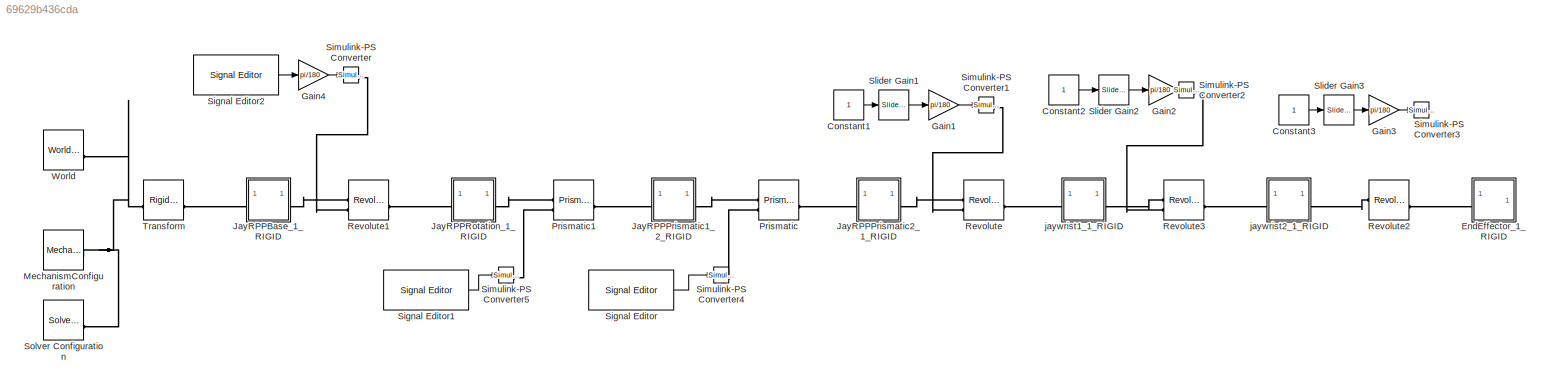
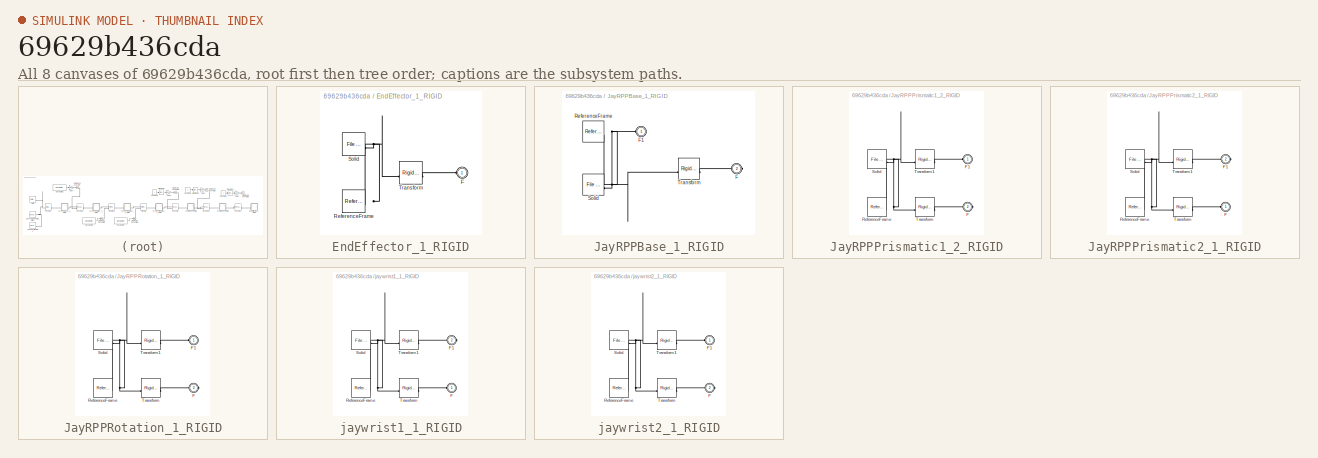
[diagram: thumbnail index - all 8 canvases of the model, root first then tree order]
MODEL slx_69629b436cda
KIND model
CONFIG AbsTol = auto
CONFIG EnableMultiTasking = off
CONFIG FixedStep = auto
CONFIG MaxStep = auto
CONFIG MinStep = auto
CONFIG RelTol = 1e-3
CONFIG SampleTimeConstraint = Unconstrained
CONFIG SolverName = VariableStepAuto
CONFIG StartTime = 0.0
CONFIG StopTime = 10.0
WORKSPACE source: external: MATLAB File  (data not in archive)
BLOCK [Constant] Constant1
BLOCK [Constant] Constant2
BLOCK [Constant] Constant3
BLOCK [SubSystem] EndEffector_1_RIGID
BLOCK [PMIOPort] EndEffector_1_RIGID/F
  Side = Left
BLOCK [Reference] EndEffector_1_RIGID/ReferenceFrame  REF=sm_lib/Frames and
Transforms/Reference
Frame
  SourceBlock = sm_lib/Frames and\nTransforms/Reference\nFrame
  SourceType = Reference\nFrame
BLOCK [Reference] EndEffector_1_RIGID/Solid  REF=sm_lib/Body Elements/File Solid
  SourceBlock = sm_lib/Body Elements/File Solid
  SourceType = File Solid
BLOCK [Reference] EndEffector_1_RIGID/Transform  REF=sm_lib/Frames and
Transforms/Rigid
Transform
  SourceBlock = sm_lib/Frames and\nTransforms/Rigid\nTransform
  SourceType = Rigid\nTransform
BLOCK [Gain] Gain1
  Gain = pi/180
BLOCK [Gain] Gain2
  Gain = pi/180
BLOCK [Gain] Gain3
  Gain = pi/180
BLOCK [Gain] Gain4
  Gain = pi/180
BLOCK [SubSystem] JayRPPBase_1_RIGID
BLOCK [PMIOPort] JayRPPBase_1_RIGID/F
  Port = 2
  Side = Right
BLOCK [PMIOPort] JayRPPBase_1_RIGID/F1
  Side = Left
BLOCK [Reference] JayRPPBase_1_RIGID/ReferenceFrame  REF=sm_lib/Frames and
Transforms/Reference
Frame
  SourceBlock = sm_lib/Frames and\nTransforms/Reference\nFrame
  SourceType = Reference\nFrame
BLOCK [Reference] JayRPPBase_1_RIGID/Solid  REF=sm_lib/Body Elements/File Solid
  SourceBlock = sm_lib/Body Elements/File Solid
  SourceType = File Solid
BLOCK [Reference] JayRPPBase_1_RIGID/Transform  REF=sm_lib/Frames and
Transforms/Rigid
Transform
  SourceBlock = sm_lib/Frames and\nTransforms/Rigid\nTransform
  SourceType = Rigid\nTransform
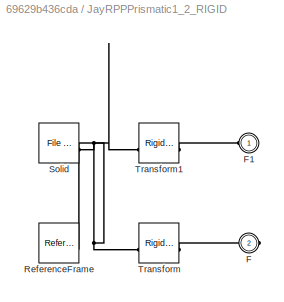
BLOCK [SubSystem] JayRPPPrismatic1_2_RIGID
BLOCK [PMIOPort] JayRPPPrismatic1_2_RIGID/F
  Port = 2
  Side = Right
BLOCK [PMIOPort] JayRPPPrismatic1_2_RIGID/F1
  Side = Left
BLOCK [Reference] JayRPPPrismatic1_2_RIGID/ReferenceFrame  REF=sm_lib/Frames and
Transforms/Reference
Frame
  SourceBlock = sm_lib/Frames and\nTransforms/Reference\nFrame
  SourceType = Reference\nFrame
BLOCK [Reference] JayRPPPrismatic1_2_RIGID/Solid  REF=sm_lib/Body Elements/File Solid
  SourceBlock = sm_lib/Body Elements/File Solid
  SourceType = File Solid
BLOCK [Reference] JayRPPPrismatic1_2_RIGID/Transform  REF=sm_lib/Frames and
Transforms/Rigid
Transform
  SourceBlock = sm_lib/Frames and\nTransforms/Rigid\nTransform
  SourceType = Rigid\nTransform
BLOCK [Reference] JayRPPPrismatic1_2_RIGID/Transform1  REF=sm_lib/Frames and
Transforms/Rigid
Transform
  SourceBlock = sm_lib/Frames and\nTransforms/Rigid\nTransform
  SourceType = Rigid\nTransform
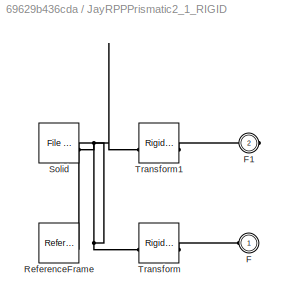
BLOCK [SubSystem] JayRPPPrismatic2_1_RIGID
BLOCK [PMIOPort] JayRPPPrismatic2_1_RIGID/F
  Side = Left
BLOCK [PMIOPort] JayRPPPrismatic2_1_RIGID/F1
  Port = 2
  Side = Right
BLOCK [Reference] JayRPPPrismatic2_1_RIGID/ReferenceFrame  REF=sm_lib/Frames and
Transforms/Reference
Frame
  SourceBlock = sm_lib/Frames and\nTransforms/Reference\nFrame
  SourceType = Reference\nFrame
BLOCK [Reference] JayRPPPrismatic2_1_RIGID/Solid  REF=sm_lib/Body Elements/File Solid
  SourceBlock = sm_lib/Body Elements/File Solid
  SourceType = File Solid
BLOCK [Reference] JayRPPPrismatic2_1_RIGID/Transform  REF=sm_lib/Frames and
Transforms/Rigid
Transform
  SourceBlock = sm_lib/Frames and\nTransforms/Rigid\nTransform
  SourceType = Rigid\nTransform
BLOCK [Reference] JayRPPPrismatic2_1_RIGID/Transform1  REF=sm_lib/Frames and
Transforms/Rigid
Transform
  SourceBlock = sm_lib/Frames and\nTransforms/Rigid\nTransform
  SourceType = Rigid\nTransform
BLOCK [SubSystem] JayRPPRotation_1_RIGID
BLOCK [PMIOPort] JayRPPRotation_1_RIGID/F
  Port = 2
  Side = Right
BLOCK [PMIOPort] JayRPPRotation_1_RIGID/F1
  Side = Left
BLOCK [Reference] JayRPPRotation_1_RIGID/ReferenceFrame  REF=sm_lib/Frames and
Transforms/Reference
Frame
  SourceBlock = sm_lib/Frames and\nTransforms/Reference\nFrame
  SourceType = Reference\nFrame
BLOCK [Reference] JayRPPRotation_1_RIGID/Solid  REF=sm_lib/Body Elements/File Solid
  SourceBlock = sm_lib/Body Elements/File Solid
  SourceType = File Solid
BLOCK [Reference] JayRPPRotation_1_RIGID/Transform  REF=sm_lib/Frames and
Transforms/Rigid
Transform
  SourceBlock = sm_lib/Frames and\nTransforms/Rigid\nTransform
  SourceType = Rigid\nTransform
BLOCK [Reference] JayRPPRotation_1_RIGID/Transform1  REF=sm_lib/Frames and
Transforms/Rigid
Transform
  SourceBlock = sm_lib/Frames and\nTransforms/Rigid\nTransform
  SourceType = Rigid\nTransform
BLOCK [Reference] MechanismConfiguration  REF=sm_lib/Utilities/Mechanism
Configuration
  SourceBlock = sm_lib/Utilities/Mechanism\nConfiguration
  SourceType = Mechanism\nConfiguration
BLOCK [Reference] Prismatic  REF=sm_lib/Joints/Prismatic
Joint
  SourceBlock = sm_lib/Joints/Prismatic\nJoint
  SourceType = Prismatic\nJoint
BLOCK [Reference] Prismatic1  REF=sm_lib/Joints/Prismatic
Joint
  SourceBlock = sm_lib/Joints/Prismatic\nJoint
  SourceType = Prismatic\nJoint
BLOCK [Reference] Revolute  REF=sm_lib/Joints/Revolute Joint
  SourceBlock = sm_lib/Joints/Revolute Joint
  SourceType = Revolute Joint
BLOCK [Reference] Revolute1  REF=sm_lib/Joints/Revolute Joint
  SourceBlock = sm_lib/Joints/Revolute Joint
  SourceType = Revolute Joint
BLOCK [Reference] Revolute2  REF=sm_lib/Joints/Revolute Joint
  SourceBlock = sm_lib/Joints/Revolute Joint
  SourceType = Revolute Joint
BLOCK [Reference] Revolute3  REF=sm_lib/Joints/Revolute Joint
  SourceBlock = sm_lib/Joints/Revolute Joint
  SourceType = Revolute Joint
BLOCK [Reference] Signal Editor  REF=SignalEditorBlockLib/Signal Editor
  LibrarySourceBlock = simulink/Sources/Signal Editor
  SourceBlock = SignalEditorBlockLib/Signal Editor
  SourceType = SignalEditor
  UserDataPersistent = on
BLOCK [Reference] Signal Editor1  REF=SignalEditorBlockLib/Signal Editor
  LibrarySourceBlock = simulink/Sources/Signal Editor
  SourceBlock = SignalEditorBlockLib/Signal Editor
  SourceType = SignalEditor
  UserDataPersistent = on
BLOCK [Reference] Signal Editor2  REF=SignalEditorBlockLib/Signal Editor
  LibrarySourceBlock = simulink/Sources/Signal Editor
  SourceBlock = SignalEditorBlockLib/Signal Editor
  SourceType = SignalEditor
  UserDataPersistent = on
BLOCK [Reference] Simulink-PS Converter  REF=nesl_utility/Simulink-PS
Converter
  SourceBlock = nesl_utility/Simulink-PS\nConverter
  SourceType = Simulink-PS\nConverter
BLOCK [Reference] Simulink-PS Converter1  REF=nesl_utility/Simulink-PS
Converter
  SourceBlock = nesl_utility/Simulink-PS\nConverter
  SourceType = Simulink-PS\nConverter
BLOCK [Reference] Simulink-PS Converter2  REF=nesl_utility/Simulink-PS
Converter
  SourceBlock = nesl_utility/Simulink-PS\nConverter
  SourceType = Simulink-PS\nConverter
BLOCK [Reference] Simulink-PS Converter3  REF=nesl_utility/Simulink-PS
Converter
  SourceBlock = nesl_utility/Simulink-PS\nConverter
  SourceType = Simulink-PS\nConverter
BLOCK [Reference] Simulink-PS Converter4  REF=nesl_utility/Simulink-PS
Converter
  SourceBlock = nesl_utility/Simulink-PS\nConverter
  SourceType = Simulink-PS\nConverter
BLOCK [Reference] Simulink-PS Converter5  REF=nesl_utility/Simulink-PS
Converter
  SourceBlock = nesl_utility/Simulink-PS\nConverter
  SourceType = Simulink-PS\nConverter
BLOCK [Reference] Slider Gain1  REF=simulink/Math
Operations/Slider
Gain
  SourceBlock = simulink/Math\nOperations/Slider\nGain
  SourceType = Slider Gain
BLOCK [Reference] Slider Gain2  REF=simulink/Math
Operations/Slider
Gain
  SourceBlock = simulink/Math\nOperations/Slider\nGain
  SourceType = Slider Gain
BLOCK [Reference] Slider Gain3  REF=simulink/Math
Operations/Slider
Gain
  SourceBlock = simulink/Math\nOperations/Slider\nGain
  SourceType = Slider Gain
BLOCK [Reference] Solver Configuration  REF=nesl_utility/Solver
Configuration
  SourceBlock = nesl_utility/Solver\nConfiguration
  SourceType = Solver\nConfiguration
BLOCK [Reference] Transform  REF=sm_lib/Frames and
Transforms/Rigid
Transform
  SourceBlock = sm_lib/Frames and\nTransforms/Rigid\nTransform
  SourceType = Rigid\nTransform
BLOCK [Reference] World  REF=sm_lib/Frames and
Transforms/World Frame
  SourceBlock = sm_lib/Frames and\nTransforms/World Frame
  SourceType = World Frame
BLOCK [SubSystem] jaywrist1_1_RIGID
BLOCK [PMIOPort] jaywrist1_1_RIGID/F
  Side = Left
BLOCK [PMIOPort] jaywrist1_1_RIGID/F1
  Port = 2
  Side = Right
BLOCK [Reference] jaywrist1_1_RIGID/ReferenceFrame  REF=sm_lib/Frames and
Transforms/Reference
Frame
  SourceBlock = sm_lib/Frames and\nTransforms/Reference\nFrame
  SourceType = Reference\nFrame
BLOCK [Reference] jaywrist1_1_RIGID/Solid  REF=sm_lib/Body Elements/File Solid
  SourceBlock = sm_lib/Body Elements/File Solid
  SourceType = File Solid
BLOCK [Reference] jaywrist1_1_RIGID/Transform  REF=sm_lib/Frames and
Transforms/Rigid
Transform
  SourceBlock = sm_lib/Frames and\nTransforms/Rigid\nTransform
  SourceType = Rigid\nTransform
BLOCK [Reference] jaywrist1_1_RIGID/Transform1  REF=sm_lib/Frames and
Transforms/Rigid
Transform
  SourceBlock = sm_lib/Frames and\nTransforms/Rigid\nTransform
  SourceType = Rigid\nTransform
BLOCK [SubSystem] jaywrist2_1_RIGID
BLOCK [PMIOPort] jaywrist2_1_RIGID/F
  Port = 2
  Side = Right
BLOCK [PMIOPort] jaywrist2_1_RIGID/F1
  Side = Left
BLOCK [Reference] jaywrist2_1_RIGID/ReferenceFrame  REF=sm_lib/Frames and
Transforms/Reference
Frame
  SourceBlock = sm_lib/Frames and\nTransforms/Reference\nFrame
  SourceType = Reference\nFrame
BLOCK [Reference] jaywrist2_1_RIGID/Solid  REF=sm_lib/Body Elements/File Solid
  SourceBlock = sm_lib/Body Elements/File Solid
  SourceType = File Solid
BLOCK [Reference] jaywrist2_1_RIGID/Transform  REF=sm_lib/Frames and
Transforms/Rigid
Transform
  SourceBlock = sm_lib/Frames and\nTransforms/Rigid\nTransform
  SourceType = Rigid\nTransform
BLOCK [Reference] jaywrist2_1_RIGID/Transform1  REF=sm_lib/Frames and
Transforms/Rigid
Transform
  SourceBlock = sm_lib/Frames and\nTransforms/Rigid\nTransform
  SourceType = Rigid\nTransform
LINE Constant1:1 -> Slider Gain1:1
LINE Constant2:1 -> Slider Gain2:1
LINE Constant3:1 -> Slider Gain3:1
LINE Gain1:1 -> Simulink-PS Converter1:1
LINE Gain3:1 -> Simulink-PS Converter3:1
LINE Gain4:1 -> Simulink-PS Converter:1
LINE Signal Editor1:1 -> Simulink-PS Converter5:1
LINE Signal Editor2:1 -> Gain4:1
LINE Signal Editor:1 -> Simulink-PS Converter4:1
LINE Slider Gain1:1 -> Gain1:1
LINE Slider Gain2:1 -> Gain2:1
LINE Slider Gain3:1 -> Gain3:1
PLINE EndEffector_1_RIGID/F:RConn1 -- EndEffector_1_RIGID/Transform:RConn1
PNET net1: EndEffector_1_RIGID/ReferenceFrame:RConn1 -- EndEffector_1_RIGID/Solid:RConn1 -- EndEffector_1_RIGID/Transform:LConn1
PLINE EndEffector_1_RIGID:LConn1 -- Revolute2:RConn1
PNET net2: JayRPPBase_1_RIGID/F1:RConn1 -- JayRPPBase_1_RIGID/ReferenceFrame:RConn1 -- JayRPPBase_1_RIGID/Solid:RConn1 -- JayRPPBase_1_RIGID/Transform:LConn1
PLINE JayRPPBase_1_RIGID/F:RConn1 -- JayRPPBase_1_RIGID/Transform:RConn1
PLINE JayRPPBase_1_RIGID:LConn1 -- Transform:RConn1
PLINE JayRPPBase_1_RIGID:RConn1 -- Revolute1:LConn1
PLINE JayRPPPrismatic1_2_RIGID/F1:RConn1 -- JayRPPPrismatic1_2_RIGID/Transform1:RConn1
PLINE JayRPPPrismatic1_2_RIGID/F:RConn1 -- JayRPPPrismatic1_2_RIGID/Transform:RConn1
PNET net3: JayRPPPrismatic1_2_RIGID/ReferenceFrame:RConn1 -- JayRPPPrismatic1_2_RIGID/Solid:RConn1 -- JayRPPPrismatic1_2_RIGID/Transform1:LConn1 -- JayRPPPrismatic1_2_RIGID/Transform:LConn1
PLINE JayRPPPrismatic1_2_RIGID:LConn1 -- Prismatic1:RConn1
PLINE JayRPPPrismatic1_2_RIGID:RConn1 -- Prismatic:LConn1
PLINE JayRPPPrismatic2_1_RIGID/F1:RConn1 -- JayRPPPrismatic2_1_RIGID/Transform1:RConn1
PLINE JayRPPPrismatic2_1_RIGID/F:RConn1 -- JayRPPPrismatic2_1_RIGID/Transform:RConn1
PNET net4: JayRPPPrismatic2_1_RIGID/ReferenceFrame:RConn1 -- JayRPPPrismatic2_1_RIGID/Solid:RConn1 -- JayRPPPrismatic2_1_RIGID/Transform1:LConn1 -- JayRPPPrismatic2_1_RIGID/Transform:LConn1
PLINE JayRPPPrismatic2_1_RIGID:LConn1 -- Prismatic:RConn1
PLINE JayRPPPrismatic2_1_RIGID:RConn1 -- Revolute:LConn1
PLINE JayRPPRotation_1_RIGID/F1:RConn1 -- JayRPPRotation_1_RIGID/Transform1:RConn1
PLINE JayRPPRotation_1_RIGID/F:RConn1 -- JayRPPRotation_1_RIGID/Transform:RConn1
PNET net5: JayRPPRotation_1_RIGID/ReferenceFrame:RConn1 -- JayRPPRotation_1_RIGID/Solid:RConn1 -- JayRPPRotation_1_RIGID/Transform1:LConn1 -- JayRPPRotation_1_RIGID/Transform:LConn1
PLINE JayRPPRotation_1_RIGID:LConn1 -- Revolute1:RConn1
PLINE JayRPPRotation_1_RIGID:RConn1 -- Prismatic1:LConn1
PNET net6: MechanismConfiguration:RConn1 -- Solver Configuration:RConn1 -- Transform:LConn1 -- World:RConn1
PLINE Prismatic1:LConn2 -- Simulink-PS Converter5:RConn1
PLINE Prismatic:LConn2 -- Simulink-PS Converter4:RConn1
PLINE Revolute1:LConn2 -- Simulink-PS Converter:RConn1
PLINE Revolute2:LConn1 -- jaywrist2_1_RIGID:RConn1
PLINE Revolute3:LConn1 -- jaywrist1_1_RIGID:RConn1
PLINE Revolute3:LConn2 -- Simulink-PS Converter2:RConn1
PLINE Revolute3:RConn1 -- jaywrist2_1_RIGID:LConn1
PLINE Revolute:LConn2 -- Simulink-PS Converter1:RConn1
PLINE Revolute:RConn1 -- jaywrist1_1_RIGID:LConn1
PLINE jaywrist1_1_RIGID/F1:RConn1 -- jaywrist1_1_RIGID/Transform1:RConn1
PLINE jaywrist1_1_RIGID/F:RConn1 -- jaywrist1_1_RIGID/Transform:RConn1
PNET net7: jaywrist1_1_RIGID/ReferenceFrame:RConn1 -- jaywrist1_1_RIGID/Solid:RConn1 -- jaywrist1_1_RIGID/Transform1:LConn1 -- jaywrist1_1_RIGID/Transform:LConn1
PLINE jaywrist2_1_RIGID/F1:RConn1 -- jaywrist2_1_RIGID/Transform1:RConn1
PLINE jaywrist2_1_RIGID/F:RConn1 -- jaywrist2_1_RIGID/Transform:RConn1
PNET net8: jaywrist2_1_RIGID/ReferenceFrame:RConn1 -- jaywrist2_1_RIGID/Solid:RConn1 -- jaywrist2_1_RIGID/Transform1:LConn1 -- jaywrist2_1_RIGID/Transform:LConn1
note: PNET lines group multi-terminal physical nets as a canonical sorted terminal list (undirected conserving connections); 2-terminal nets keep the pairwise PLINE form
